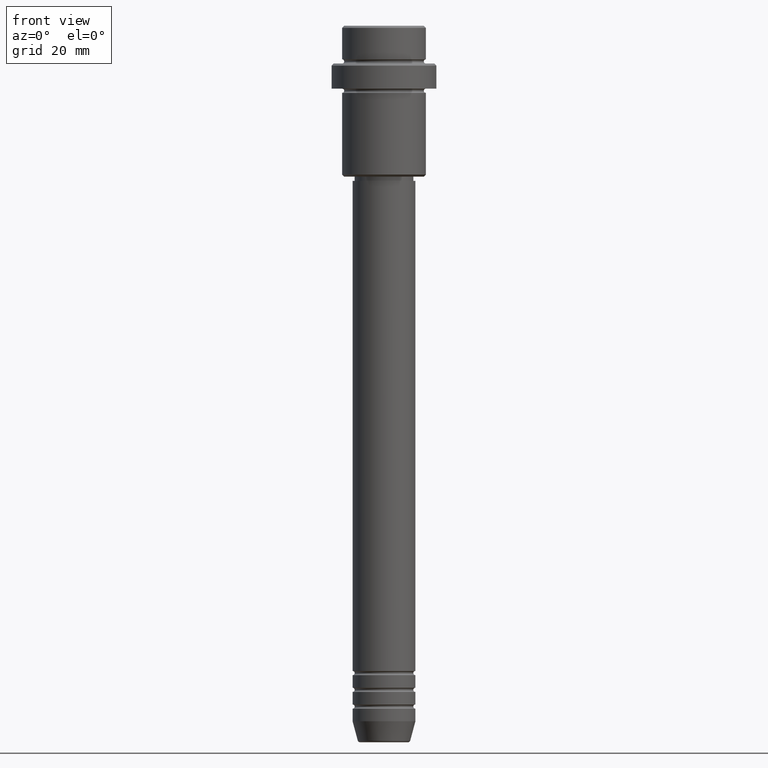
[diagram: clean part render]
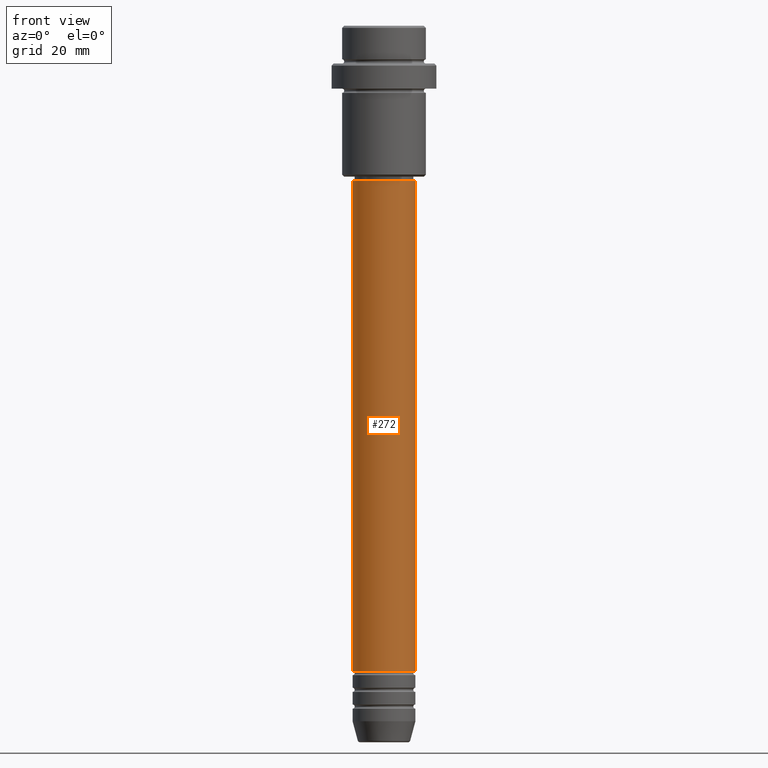
[diagram: same view with one face highlighted and labeled with its STEP entity id]
A machine part, front view. The second image highlights one B-rep face of the part: STEP entity #272.
In plain terms, the highlighted cylindrical surface (edge-blend (fillet) strip) has radius 7.5 mm, axis along (-0, -0, 1).
Its self-contained STEP definition (entity closure, byte-faithful):
#30 = CARTESIAN_POINT ( 'NONE',  ( -7.500000000000000000, 9.184850993605147944E-16, 0.000000000000000000 ) ) ;
#51 = DIRECTION ( 'NONE',  ( -0.000000000000000000, -0.000000000000000000, 1.000000000000000000 ) ) ;
#69 = CARTESIAN_POINT ( 'NONE',  ( 7.500000000000000000, 0.000000000000000000, -153.9999999999998863 ) ) ;
#72 = CYLINDRICAL_SURFACE ( 'NONE', #756, 7.500000000000000000 ) ;
#75 = VERTEX_POINT ( 'NONE', #800 ) ;
#121 = ORIENTED_EDGE ( 'NONE', *, *, #1078, .F. ) ;
#196 = DIRECTION ( 'NONE',  ( -0.000000000000000000, -0.000000000000000000, 1.000000000000000000 ) ) ;
#206 = CARTESIAN_POINT ( 'NONE',  ( 0.000000000000000000, 0.000000000000000000, -153.9999999999998863 ) ) ;
#216 = DIRECTION ( 'NONE',  ( -0.000000000000000000, -0.000000000000000000, 1.000000000000000000 ) ) ;
#226 = AXIS2_PLACEMENT_3D ( 'NONE', #206, #216, #998 ) ;
#272 = ADVANCED_FACE ( 'NONE', ( #943 ), #72, .T. ) ;
#282 = CARTESIAN_POINT ( 'NONE',  ( 0.000000000000000000, 0.000000000000000000, -37.00000000000000000 ) ) ;
#346 = DIRECTION ( 'NONE',  ( -0.000000000000000000, -0.000000000000000000, 1.000000000000000000 ) ) ;
#461 = EDGE_LOOP ( 'NONE', ( #121, #1111, #1309, #486 ) ) ;
#482 = CIRCLE ( 'NONE', #226, 7.500000000000000000 ) ;
#486 = ORIENTED_EDGE ( 'NONE', *, *, #1106, .F. ) ;
#672 = AXIS2_PLACEMENT_3D ( 'NONE', #282, #51, #1377 ) ;
#749 = CARTESIAN_POINT ( 'NONE',  ( 0.000000000000000000, 0.000000000000000000, 0.000000000000000000 ) ) ;
#756 = AXIS2_PLACEMENT_3D ( 'NONE', #749, #1366, #1393 ) ;
#776 = CARTESIAN_POINT ( 'NONE',  ( 7.500000000000000000, 0.000000000000000000, 0.000000000000000000 ) ) ;
#800 = CARTESIAN_POINT ( 'NONE',  ( -7.500000000000000000, 9.184850993605147944E-16, -153.9999999999998863 ) ) ;
#899 = EDGE_CURVE ( 'NONE', #1217, #1268, #973, .T. ) ;
#904 = EDGE_CURVE ( 'NONE', #75, #1217, #482, .T. ) ;
#943 = FACE_OUTER_BOUND ( 'NONE', #461, .T. ) ;
#972 = CARTESIAN_POINT ( 'NONE',  ( 7.500000000000000000, 0.000000000000000000, -37.00000000000000000 ) ) ;
#973 = LINE ( 'NONE', #776, #1348 ) ;
#998 = DIRECTION ( 'NONE',  ( 1.000000000000000000, 0.000000000000000000, 0.000000000000000000 ) ) ;
#1034 = VECTOR ( 'NONE', #346, 1000.000000000000000 ) ;
#1051 = CARTESIAN_POINT ( 'NONE',  ( -7.500000000000000000, 9.184850993605147944E-16, -37.00000000000000000 ) ) ;
#1078 = EDGE_CURVE ( 'NONE', #75, #1120, #1338, .T. ) ;
#1106 = EDGE_CURVE ( 'NONE', #1120, #1268, #1283, .T. ) ;
#1111 = ORIENTED_EDGE ( 'NONE', *, *, #904, .T. ) ;
#1120 = VERTEX_POINT ( 'NONE', #1051 ) ;
#1217 = VERTEX_POINT ( 'NONE', #69 ) ;
#1268 = VERTEX_POINT ( 'NONE', #972 ) ;
#1283 = CIRCLE ( 'NONE', #672, 7.500000000000000000 ) ;
#1309 = ORIENTED_EDGE ( 'NONE', *, *, #899, .T. ) ;
#1338 = LINE ( 'NONE', #30, #1034 ) ;
#1348 = VECTOR ( 'NONE', #196, 1000.000000000000000 ) ;
#1366 = DIRECTION ( 'NONE',  ( -0.000000000000000000, -0.000000000000000000, 1.000000000000000000 ) ) ;
#1377 = DIRECTION ( 'NONE',  ( 1.000000000000000000, 0.000000000000000000, 0.000000000000000000 ) ) ;
#1393 = DIRECTION ( 'NONE',  ( 1.000000000000000000, 0.000000000000000000, 0.000000000000000000 ) ) ;